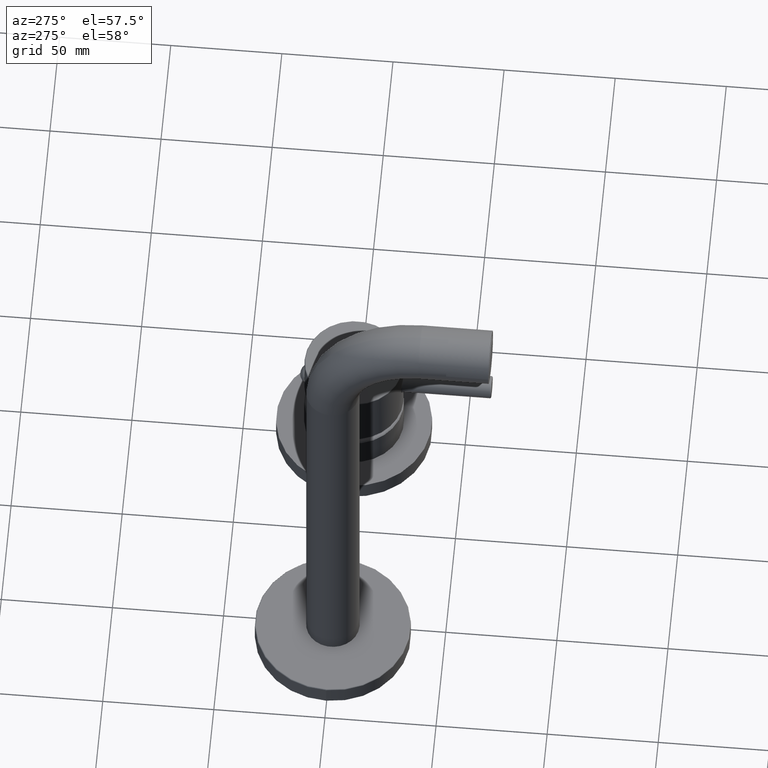
[diagram: clean part render]
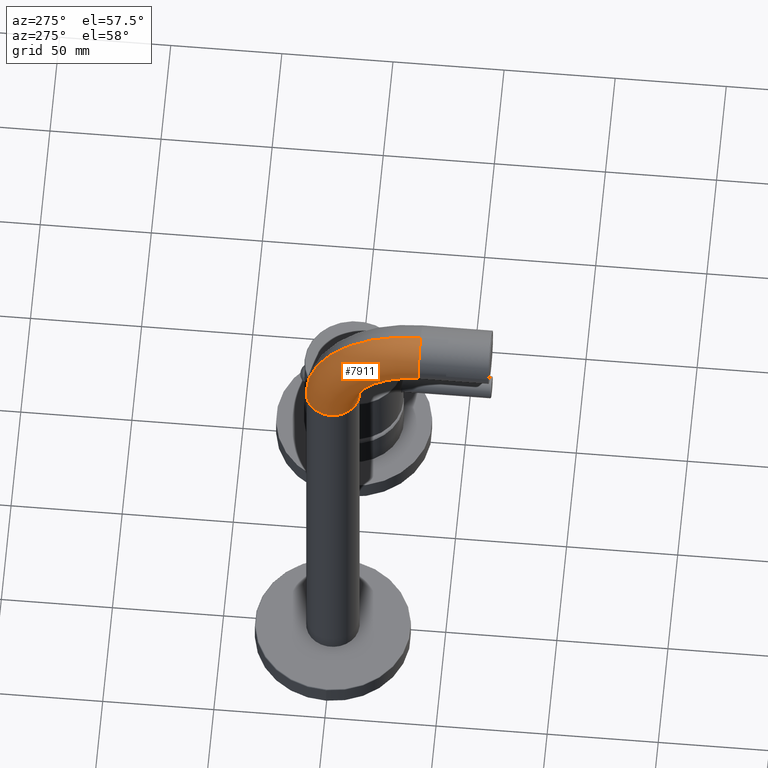
[diagram: same view with one face highlighted and labeled with its STEP entity id]
A machine part, auxiliary view. The second image highlights one B-rep face of the part: STEP entity #7911.
In plain terms, the highlighted toroidal blend (fillet) surface has major radius 39.5 mm and minor (blend) radius 12 mm.
Its self-contained STEP definition (entity closure, byte-faithful):
#7647=CARTESIAN_POINT('',(-1.09E2,-3.95E1,2.83E2));
#7648=DIRECTION('',(0.E0,-1.E0,0.E0));
#7649=DIRECTION('',(0.E0,0.E0,1.E0));
#7650=AXIS2_PLACEMENT_3D('',#7647,#7648,#7649);
#7656=CARTESIAN_POINT('',(-1.09E2,2.842170943040E-14,2.435E2));
#7657=DIRECTION('',(0.E0,0.E0,1.E0));
#7658=DIRECTION('',(0.E0,1.E0,0.E0));
#7659=AXIS2_PLACEMENT_3D('',#7656,#7657,#7658);
#7661=CARTESIAN_POINT('',(-1.09E2,-3.95E1,2.435E2));
#7662=DIRECTION('',(1.E0,0.E0,0.E0));
#7663=DIRECTION('',(0.E0,1.E0,0.E0));
#7664=AXIS2_PLACEMENT_3D('',#7661,#7662,#7663);
#7737=CARTESIAN_POINT('',(-1.09E2,-3.95E1,2.435E2));
#7738=DIRECTION('',(1.E0,0.E0,0.E0));
#7739=DIRECTION('',(0.E0,1.E0,0.E0));
#7740=AXIS2_PLACEMENT_3D('',#7737,#7738,#7739);
#7752=CARTESIAN_POINT('',(-1.09E2,-1.2E1,2.435E2));
#7753=CARTESIAN_POINT('',(-1.09E2,1.2E1,2.435E2));
#7754=VERTEX_POINT('',#7752);
#7755=VERTEX_POINT('',#7753);
#7756=CARTESIAN_POINT('',(-1.09E2,-3.95E1,2.71E2));
#7757=CARTESIAN_POINT('',(-1.09E2,-3.95E1,2.95E2));
#7758=VERTEX_POINT('',#7756);
#7759=VERTEX_POINT('',#7757);
#7897=CARTESIAN_POINT('',(-1.09E2,-3.95E1,2.435E2));
#7898=DIRECTION('',(1.E0,0.E0,0.E0));
#7899=DIRECTION('',(0.E0,-1.E0,0.E0));
#7900=AXIS2_PLACEMENT_3D('',#7897,#7898,#7899);
#7901=TOROIDAL_SURFACE('',#7900,3.95E1,1.2E1);
#7903=ORIENTED_EDGE('',*,*,#7902,.F.);
#7905=ORIENTED_EDGE('',*,*,#7904,.T.);
#7906=ORIENTED_EDGE('',*,*,#7884,.T.);
#7908=ORIENTED_EDGE('',*,*,#7907,.F.);
#7909=EDGE_LOOP('',(#7903,#7905,#7906,#7908));
#7910=FACE_OUTER_BOUND('',#7909,.F.);
#7911=ADVANCED_FACE('',(#7910),#7901,.T.);
#7651=CIRCLE('',#7650,1.2E1);
#7660=CIRCLE('',#7659,1.2E1);
#7665=CIRCLE('',#7664,5.15E1);
#7741=CIRCLE('',#7740,2.75E1);
#7884=EDGE_CURVE('',#7759,#7758,#7651,.T.);
#7902=EDGE_CURVE('',#7755,#7754,#7660,.T.);
#7904=EDGE_CURVE('',#7755,#7759,#7665,.T.);
#7907=EDGE_CURVE('',#7754,#7758,#7741,.T.);